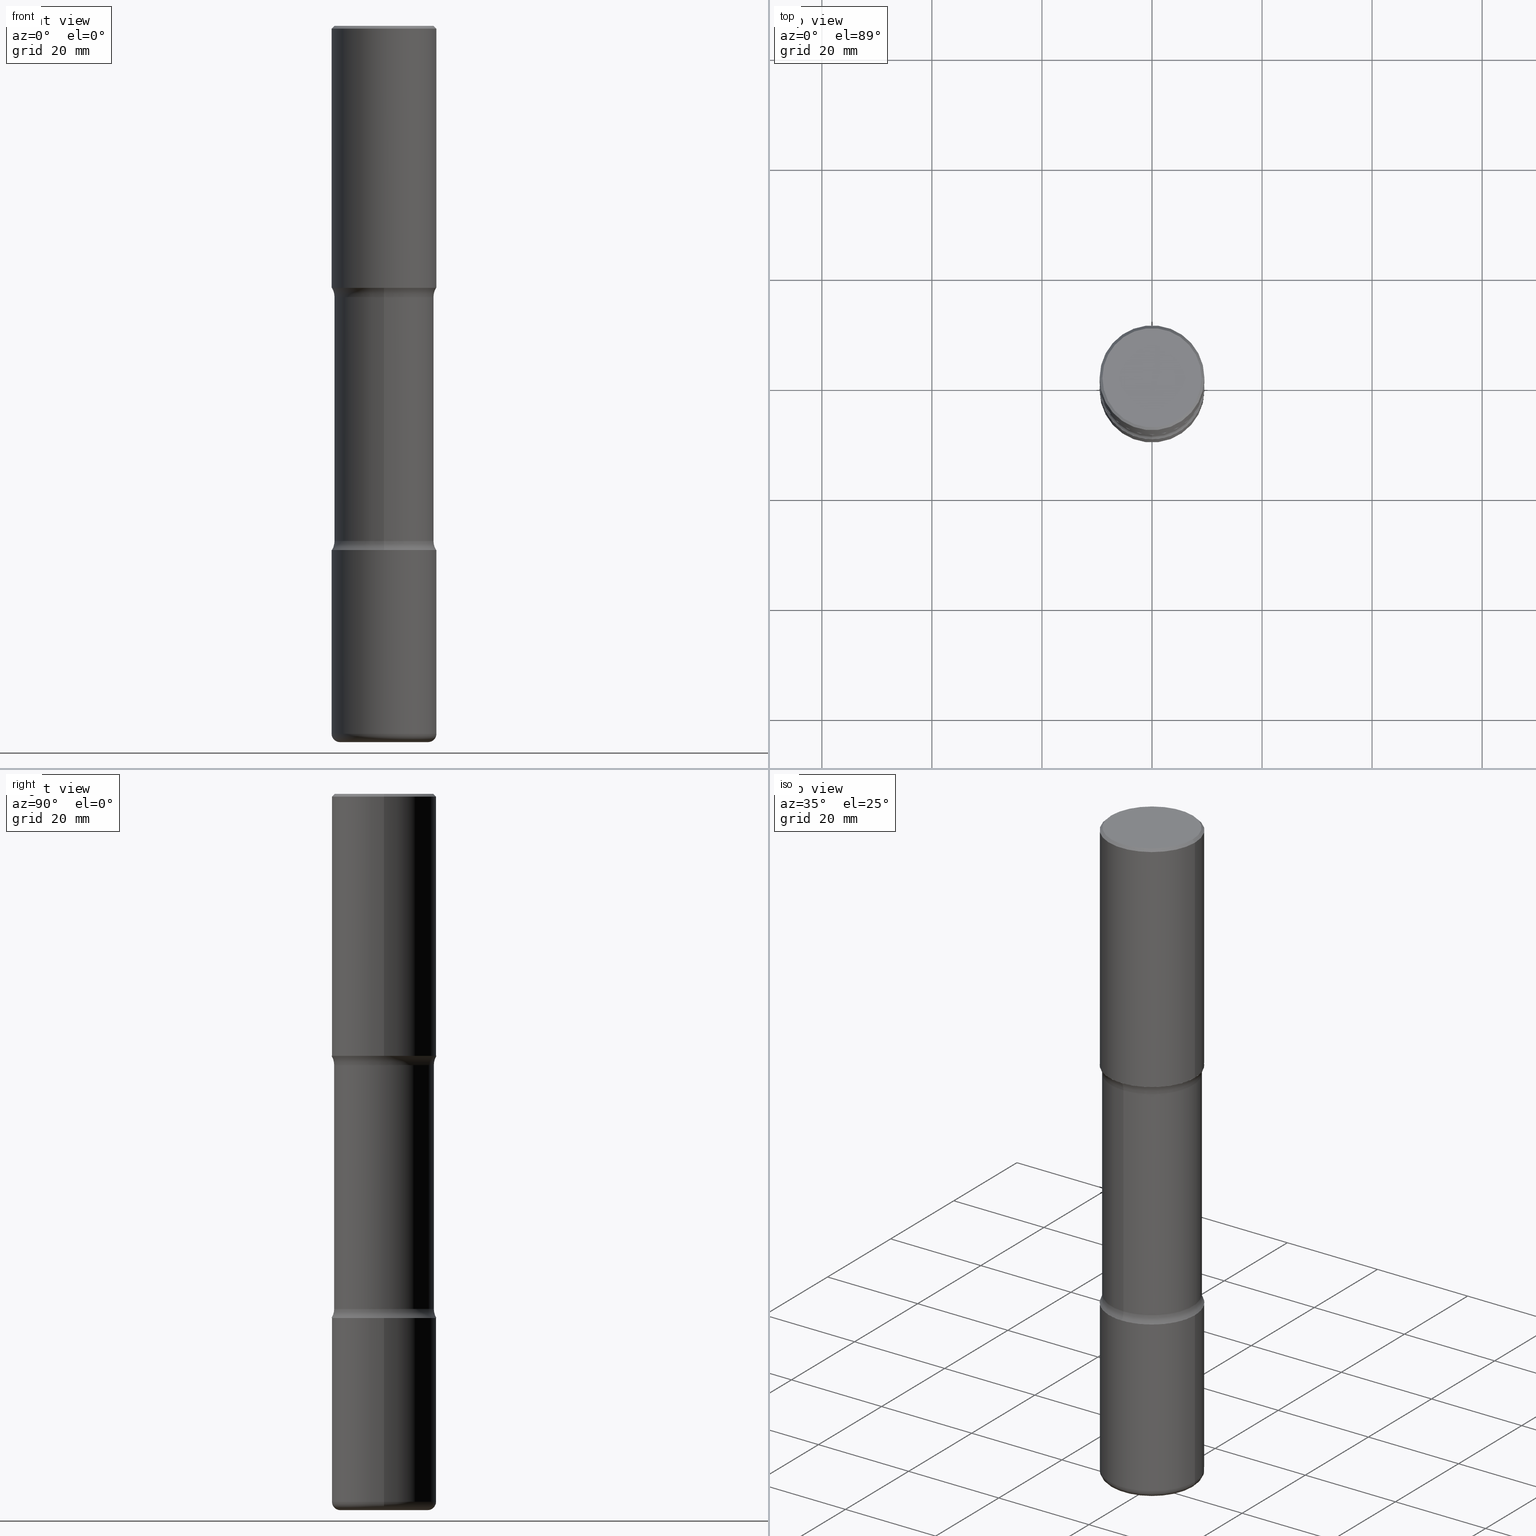
[diagram: canonical four-view strip — front | top / right | iso, engineering-drawing reading convention]
A machine part, canonical four-view strip (front | top / right | iso — engineering-drawing reading convention). The complete STEP part file that produces these views, byte-faithful:
ISO-10303-21;
HEADER;
FILE_DESCRIPTION (( 'STEP AP203' ),
    '1' );
FILE_NAME ('34121.STEP',
    '2024-03-01T23:07:41',
    ( '' ),
    ( '' ),
    'SwSTEP 2.0',
    'SolidWorks 2023',
    '' );
FILE_SCHEMA (( 'CONFIG_CONTROL_DESIGN' ));
ENDSEC;

DATA;
#1 = CARTESIAN_POINT ( 'NONE',  ( 1.253302763169882057E-28, -1.789384186157111367E-14, -5.124999999999998224 ) ) ;
#2 = MANIFOLD_SOLID_BREP ( 'Body-Move/Copy2[1]', #170 ) ;
#3 = CONICAL_SURFACE ( 'NONE', #541, 0.3750000000000002220, 0.7853981633974463916 ) ;
#4 = DIRECTION ( 'NONE',  ( 6.982962677686265922E-15, 1.000000000000000000, -3.065187089665373633E-15 ) ) ;
#5 = AXIS2_PLACEMENT_3D ( 'NONE', #74, #14, #82 ) ;
#6 = ORIENTED_EDGE ( 'NONE', *, *, #471, .T. ) ;
#7 = CARTESIAN_POINT ( 'NONE',  ( 9.170508023194262238E-29, -1.309305502066179741E-14, -3.750000000000000000 ) ) ;
#8 = EDGE_LOOP ( 'NONE', ( #289, #327 ) ) ;
#9 = DIRECTION ( 'NONE',  ( -1.000000000000000000, 6.982962677686265922E-15, -4.876176775795935793E-29 ) ) ;
#10 = ORIENTED_EDGE ( 'NONE', *, *, #22, .F. ) ;
#11 = DIRECTION ( 'NONE',  ( 1.000000000000000000, -6.982962677686265133E-15, 0.000000000000000000 ) ) ;
#12 = CIRCLE ( 'NONE', #339, 0.3150000000000004463 ) ;
#13 = TOROIDAL_SURFACE ( 'NONE', #340, 0.4814999999999999281, 0.1250000000000000000 ) ;
#14 = DIRECTION ( 'NONE',  ( -2.445468806185136597E-29, 3.491481338843145583E-15, 1.000000000000000000 ) ) ;
#15 = EDGE_CURVE ( 'NONE', #462, #111, #440, .T. ) ;
#16 = APPROVAL_DATE_TIME ( #421, #338 ) ;
#17 = ORIENTED_EDGE ( 'NONE', *, *, #266, .T. ) ;
#18 = ORIENTED_EDGE ( 'NONE', *, *, #423, .T. ) ;
#19 = DIRECTION ( 'NONE',  ( 1.000000000000000000, -6.982962677686265922E-15, 4.883557194083112901E-29 ) ) ;
#20 = ORIENTED_EDGE ( 'NONE', *, *, #30, .T. ) ;
#21 = CARTESIAN_POINT ( 'NONE',  ( 1.238629950332771579E-28, -1.768435298124053008E-14, -5.064999999999999503 ) ) ;
#22 = EDGE_CURVE ( 'NONE', #153, #185, #162, .T. ) ;
#23 = EDGE_LOOP ( 'NONE', ( #412, #537, #458, #197 ) ) ;
#24 = AXIS2_PLACEMENT_3D ( 'NONE', #121, #249, #509 ) ;
#25 = CARTESIAN_POINT ( 'NONE',  ( 9.170508023194262238E-29, -1.309305502066179741E-14, -3.750000000000000000 ) ) ;
#26 = AXIS2_PLACEMENT_3D ( 'NONE', #373, #193, #328 ) ;
#27 = CARTESIAN_POINT ( 'NONE',  ( 0.000000000000000000, 0.000000000000000000, 0.000000000000000000 ) ) ;
#28 = AXIS2_PLACEMENT_3D ( 'NONE', #390, #553, #127 ) ;
#29 = AXIS2_PLACEMENT_3D ( 'NONE', #310, #410, #57 ) ;
#30 = EDGE_CURVE ( 'NONE', #224, #230, #38, .T. ) ;
#31 = AXIS2_PLACEMENT_3D ( 'NONE', #260, #264, #302 ) ;
#32 = DIRECTION ( 'NONE',  ( -1.000000000000000000, 7.105427357601001859E-15, 0.000000000000000000 ) ) ;
#33 = CC_DESIGN_PERSON_AND_ORGANIZATION_ASSIGNMENT ( #457, #72, ( #66 ) ) ;
#34 = DIRECTION ( 'NONE',  ( 6.982962677686265922E-15, 1.000000000000000000, -3.065187089665373239E-15 ) ) ;
#35 = CARTESIAN_POINT ( 'NONE',  ( 4.487704276808594217E-29, -6.686224282734187191E-15, -1.875000000000000666 ) ) ;
#36 = DIRECTION ( 'NONE',  ( 6.982962677686265922E-15, 1.000000000000000000, -3.065187089665371661E-15 ) ) ;
#37 = LENGTH_MEASURE_WITH_UNIT ( LENGTH_MEASURE( 0.02539999999999999897 ), #469 );
#38 = LINE ( 'NONE', #214, #80 ) ;
#39 = AXIS2_PLACEMENT_3D ( 'NONE', #61, #413, #218 ) ;
#40 = AXIS2_PLACEMENT_3D ( 'NONE', #459, #71, #198 ) ;
#41 = CARTESIAN_POINT ( 'NONE',  ( 4.697601167951830213E-29, -6.843315756459355709E-15, -1.940442723048480866 ) ) ;
#42 = EDGE_CURVE ( 'NONE', #366, #398, #209, .T. ) ;
#43 = EDGE_CURVE ( 'NONE', #117, #286, #283, .T. ) ;
#44 = DIRECTION ( 'NONE',  ( -2.445468806185136597E-29, 3.491481338843145583E-15, 1.000000000000000000 ) ) ;
#45 = ORIENTED_EDGE ( 'NONE', *, *, #259, .F. ) ;
#46 = DIRECTION ( 'NONE',  ( -2.497495331405689947E-29, 3.416976393561393039E-15, 1.000000000000000000 ) ) ;
#47 = FACE_OUTER_BOUND ( 'NONE', #268, .T. ) ;
#48 = ORIENTED_EDGE ( 'NONE', *, *, #232, .T. ) ;
#49 = CYLINDRICAL_SURFACE ( 'NONE', #294, 0.3750000000000002220 ) ;
#50 = ORIENTED_EDGE ( 'NONE', *, *, #156, .F. ) ;
#51 = ADVANCED_FACE ( 'NONE', ( #449 ), #175, .F. ) ;
#52 = AXIS2_PLACEMENT_3D ( 'NONE', #208, #388, #79 ) ;
#53 = FACE_OUTER_BOUND ( 'NONE', #497, .T. ) ;
#54 = PERSON_AND_ORGANIZATION ( #394, #183 ) ;
#55 = VERTEX_POINT ( 'NONE', #91 ) ;
#56 = ADVANCED_BREP_SHAPE_REPRESENTATION ( '34121', ( #2, #200, #187, #28 ), #333 ) ;
#57 = DIRECTION ( 'NONE',  ( 1.000000000000000000, -6.982962677686265922E-15, 4.876176775795935793E-29 ) ) ;
#58 = APPLICATION_PROTOCOL_DEFINITION ( 'international standard', 'config_control_design', 1994, #496 ) ;
#59 = EDGE_LOOP ( 'NONE', ( #17, #329 ) ) ;
#60 = EDGE_CURVE ( 'NONE', #248, #444, #139, .T. ) ;
#61 = CARTESIAN_POINT ( 'NONE',  ( 4.487704276808594217E-29, -6.686224282734187191E-15, -1.875000000000000666 ) ) ;
#62 = PERSON_AND_ORGANIZATION ( #394, #183 ) ;
#63 = LOCAL_TIME ( 18, 7, 41.00000000000000000, #190 ) ;
#64 = ORIENTED_EDGE ( 'NONE', *, *, #156, .T. ) ;
#65 = CIRCLE ( 'NONE', #75, 0.3565000000000000946 ) ;
#66 = PRODUCT_DEFINITION_FORMATION_WITH_SPECIFIED_SOURCE ( 'ANY', '', #484, .NOT_KNOWN. ) ;
#67 = DIRECTION ( 'NONE',  ( 6.982962677686265922E-15, 1.000000000000000000, -2.913971193241879977E-15 ) ) ;
#68 = ADVANCED_FACE ( 'NONE', ( #53 ), #143, .T. ) ;
#69 = EDGE_LOOP ( 'NONE', ( #18, #93, #445, #271 ) ) ;
#70 = DIRECTION ( 'NONE',  ( 1.000000000000000000, -6.982962677686265922E-15, 4.876176775795935793E-29 ) ) ;
#71 = DIRECTION ( 'NONE',  ( -2.445468806185136597E-29, 3.491481338843145583E-15, 1.000000000000000000 ) ) ;
#72 = PERSON_AND_ORGANIZATION_ROLE ( 'creator' ) ;
#73 = ORIENTED_EDGE ( 'NONE', *, *, #307, .T. ) ;
#74 = CARTESIAN_POINT ( 'NONE',  ( 1.253302763169882057E-28, -1.789384186157111367E-14, -5.124999999999998224 ) ) ;
#75 = AXIS2_PLACEMENT_3D ( 'NONE', #397, #526, #36 ) ;
#76 = LINE ( 'NONE', #381, #226 ) ;
#77 = EDGE_CURVE ( 'NONE', #185, #153, #293, .T. ) ;
#78 = EDGE_CURVE ( 'NONE', #107, #372, #12, .T. ) ;
#79 = DIRECTION ( 'NONE',  ( 1.000000000000000000, -6.982962677686265922E-15, 0.000000000000000000 ) ) ;
#80 = VECTOR ( 'NONE', #346, 39.37007874015748143 ) ;
#81 = CIRCLE ( 'NONE', #348, 0.05999999999999935940 ) ;
#82 = DIRECTION ( 'NONE',  ( 1.000000000000000000, -6.982962677686265133E-15, 0.000000000000000000 ) ) ;
#83 = DIRECTION ( 'NONE',  ( 1.000000000000000000, -6.982962677686266711E-15, 4.876231632511985941E-29 ) ) ;
#84 = CC_DESIGN_PERSON_AND_ORGANIZATION_ASSIGNMENT ( #425, #155, ( #436 ) ) ;
#85 = DIMENSIONAL_EXPONENTS ( 1.000000000000000000, 0.000000000000000000, 0.000000000000000000, 0.000000000000000000, 0.000000000000000000, 0.000000000000000000, 0.000000000000000000 ) ;
#86 = CIRCLE ( 'NONE', #308, 0.3750000000000004441 ) ;
#87 = CIRCLE ( 'NONE', #112, 0.3750000000000002220 ) ;
#88 = CIRCLE ( 'NONE', #418, 0.3750000000000004441 ) ;
#89 = DIRECTION ( 'NONE',  ( 2.497495331405690228E-29, -3.416976393561393039E-15, -1.000000000000000000 ) ) ;
#90 = ORIENTED_EDGE ( 'NONE', *, *, #400, .T. ) ;
#91 = CARTESIAN_POINT ( 'NONE',  ( 0.3750000000000001110, -2.030296398537288325E-14, -5.064999999999999503 ) ) ;
#92 = EDGE_LOOP ( 'NONE', ( #48, #545, #317, #358 ) ) ;
#93 = ORIENTED_EDGE ( 'NONE', *, *, #382, .T. ) ;
#94 = EDGE_CURVE ( 'NONE', #230, #111, #87, .T. ) ;
#95 = DIRECTION ( 'NONE',  ( -6.982962677686266711E-15, -1.000000000000000000, 3.491481338843145583E-15 ) ) ;
#96 = ORIENTED_EDGE ( 'NONE', *, *, #97, .T. ) ;
#97 = EDGE_CURVE ( 'NONE', #372, #55, #403, .T. ) ;
#98 = CARTESIAN_POINT ( 'NONE',  ( 0.000000000000000000, 0.000000000000000000, 0.000000000000000000 ) ) ;
#99 = ORIENTED_EDGE ( 'NONE', *, *, #263, .F. ) ;
#100 = DIRECTION ( 'NONE',  ( -1.000000000000000000, 6.982962677686266711E-15, 0.000000000000000000 ) ) ;
#101 = VECTOR ( 'NONE', #160, 39.37007874015748143 ) ;
#102 = VERTEX_POINT ( 'NONE', #359 ) ;
#103 = CARTESIAN_POINT ( 'NONE',  ( 0.000000000000000000, 0.000000000000000000, 0.000000000000000000 ) ) ;
#104 = CARTESIAN_POINT ( 'NONE',  ( 9.170508023194262238E-29, -1.309305502066179741E-14, -3.750000000000000000 ) ) ;
#105 = CALENDAR_DATE ( 2024, 1, 3 ) ;
#106 = EDGE_CURVE ( 'NONE', #462, #224, #86, .T. ) ;
#107 = VERTEX_POINT ( 'NONE', #270 ) ;
#108 = ADVANCED_FACE ( 'NONE', ( #189 ), #456, .F. ) ;
#109 = PLANE ( 'NONE',  #274 ) ;
#110 = APPROVAL_DATE_TIME ( #539, #301 ) ;
#111 = VERTEX_POINT ( 'NONE', #313 ) ;
#112 = AXIS2_PLACEMENT_3D ( 'NONE', #325, #273, #495 ) ;
#113 = AXIS2_PLACEMENT_3D ( 'NONE', #27, #341, #70 ) ;
#114 = FACE_OUTER_BOUND ( 'NONE', #8, .T. ) ;
#115 = APPROVAL_STATUS ( 'not_yet_approved' ) ;
#116 = ADVANCED_FACE ( 'NONE', ( #365 ), #3, .T. ) ;
#117 = VERTEX_POINT ( 'NONE', #188 ) ;
#118 = CARTESIAN_POINT ( 'NONE',  ( 1.238629950332771579E-28, -1.768435298124053008E-14, -5.064999999999999503 ) ) ;
#119 = DIRECTION ( 'NONE',  ( 1.000000000000000000, -6.982962677686266711E-15, 4.876176775795935793E-29 ) ) ;
#120 = PERSON_AND_ORGANIZATION ( #394, #183 ) ;
#121 = CARTESIAN_POINT ( 'NONE',  ( 1.260456410387708500E-28, -1.779139756180870974E-14, -5.125000000000000000 ) ) ;
#122 = CIRCLE ( 'NONE', #31, 0.3750000000000001110 ) ;
#123 = EDGE_CURVE ( 'NONE', #444, #178, #180, .T. ) ;
#124 = LINE ( 'NONE', #557, #384 ) ;
#125 = EDGE_CURVE ( 'NONE', #265, #286, #378, .T. ) ;
#126 = AXIS2_PLACEMENT_3D ( 'NONE', #237, #415, #9 ) ;
#127 = DIRECTION ( 'NONE',  ( 1.000000000000000000, 0.000000000000000000, 0.000000000000000000 ) ) ;
#128 = FACE_OUTER_BOUND ( 'NONE', #505, .T. ) ;
#129 = DIRECTION ( 'NONE',  ( -2.445468806185136597E-29, 3.491481338843145583E-15, 1.000000000000000000 ) ) ;
#130 =( NAMED_UNIT ( * ) PLANE_ANGLE_UNIT ( ) SI_UNIT ( $, .RADIAN. ) );
#131 = PERSON_AND_ORGANIZATION_ROLE ( 'design_owner' ) ;
#132 = CARTESIAN_POINT ( 'NONE',  ( 9.010469885387392836E-29, -1.286456297437495039E-14, -3.684557276951520688 ) ) ;
#133 = CARTESIAN_POINT ( 'NONE',  ( 4.890937612370306439E-31, -6.982962677686338448E-17, -0.02000000000000013572 ) ) ;
#134 = APPLICATION_PROTOCOL_DEFINITION ( 'international standard', 'config_control_design', 1994, #235 ) ;
#135 = CARTESIAN_POINT ( 'NONE',  ( 4.585254011597132801E-29, -6.546527510330900285E-15, -1.875000000000000666 ) ) ;
#136 = AXIS2_PLACEMENT_3D ( 'NONE', #35, #256, #552 ) ;
#137 = CIRCLE ( 'NONE', #395, 0.1249999999999999584 ) ;
#138 = CC_DESIGN_APPROVAL ( #485, ( #436 ) ) ;
#139 = LINE ( 'NONE', #148, #202 ) ;
#140 = DIRECTION ( 'NONE',  ( -1.000000000000000000, 6.982962677686265922E-15, -4.883557194083112340E-29 ) ) ;
#141 = DIRECTION ( 'NONE',  ( -2.445468806185136597E-29, 3.491481338843145583E-15, 1.000000000000000000 ) ) ;
#142 = EDGE_LOOP ( 'NONE', ( #374, #427, #150, #446 ) ) ;
#143 = CYLINDRICAL_SURFACE ( 'NONE', #29, 0.3750000000000003886 ) ;
#144 = PERSON_AND_ORGANIZATION ( #394, #183 ) ;
#145 = VECTOR ( 'NONE', #389, 39.37007874015748143 ) ;
#146 = AXIS2_PLACEMENT_3D ( 'NONE', #303, #269, #213 ) ;
#147 = ORIENTED_EDGE ( 'NONE', *, *, #307, .F. ) ;
#148 = CARTESIAN_POINT ( 'NONE',  ( -0.3750000000000002220, 2.664535259100377275E-15, -1.844600658845590719E-29 ) ) ;
#149 = COORDINATED_UNIVERSAL_TIME_OFFSET ( 5, 0, .BEHIND. ) ;
#150 = ORIENTED_EDGE ( 'NONE', *, *, #550, .T. ) ;
#151 = DIRECTION ( 'NONE',  ( -2.445468806185136597E-29, 3.491481338843145583E-15, 1.000000000000000000 ) ) ;
#152 = CALENDAR_DATE ( 2024, 1, 3 ) ;
#153 = VERTEX_POINT ( 'NONE', #351 ) ;
#154 = DIRECTION ( 'NONE',  ( 1.000000000000000000, -6.860497997771530774E-15, 4.841711302051742582E-29 ) ) ;
#155 = PERSON_AND_ORGANIZATION_ROLE ( 'classification_officer' ) ;
#156 = EDGE_CURVE ( 'NONE', #224, #462, #210, .T. ) ;
#157 = DIRECTION ( 'NONE',  ( 2.497495331405690228E-29, -3.416976393561393039E-15, -1.000000000000000000 ) ) ;
#158 = ORIENTED_EDGE ( 'NONE', *, *, #263, .T. ) ;
#159 = AXIS2_PLACEMENT_3D ( 'NONE', #21, #151, #281 ) ;
#160 = DIRECTION ( 'NONE',  ( -0.7071067811865461294, 2.468850131082242072E-15, -0.7071067811865489050 ) ) ;
#161 = ADVANCED_FACE ( 'NONE', ( #529 ), #481, .F. ) ;
#162 = CIRCLE ( 'NONE', #136, 0.3750000000000004996 ) ;
#163 = FACE_OUTER_BOUND ( 'NONE', #500, .T. ) ;
#164 = AXIS2_PLACEMENT_3D ( 'NONE', #133, #220, #312 ) ;
#165 = AXIS2_PLACEMENT_3D ( 'NONE', #132, #157, #280 ) ;
#166 = CARTESIAN_POINT ( 'NONE',  ( -2.445767536205424380E-15, -0.3565000000000177471, -5.124999999999998224 ) ) ;
#167 = DIRECTION ( 'NONE',  ( -2.445468806185136597E-29, 3.491481338843145583E-15, 1.000000000000000000 ) ) ;
#168 = CARTESIAN_POINT ( 'NONE',  ( -2.572686749164282132E-15, -0.3750000000000070499, -1.874999999999999334 ) ) ;
#169 = CC_DESIGN_SECURITY_CLASSIFICATION ( #436, ( #66 ) ) ;
#170 = CLOSED_SHELL ( 'NONE', ( #176, #536, #479, #199, #453, #326 ) ) ;
#171 = CC_DESIGN_PERSON_AND_ORGANIZATION_ASSIGNMENT ( #370, #452, ( #207 ) ) ;
#172 = CIRCLE ( 'NONE', #159, 0.3750000000000004441 ) ;
#173 = CARTESIAN_POINT ( 'NONE',  ( 2.489426194595200956E-15, 0.3564999999999931557, -1.940442723048481977 ) ) ;
#174 = PLANE ( 'NONE',  #146 ) ;
#175 = PLANE ( 'NONE',  #555 ) ;
#176 = ADVANCED_FACE ( 'NONE', ( #451 ), #49, .T. ) ;
#177 = DIRECTION ( 'NONE',  ( -2.445468806185136597E-29, 3.491481338843145583E-15, 1.000000000000000000 ) ) ;
#178 = VERTEX_POINT ( 'NONE', #195 ) ;
#179 = DIRECTION ( 'NONE',  ( -2.445468806185136597E-29, 3.491481338843145583E-15, 1.000000000000000000 ) ) ;
#180 = CIRCLE ( 'NONE', #299, 0.3750000000000001110 ) ;
#181 = EDGE_LOOP ( 'NONE', ( #73, #364 ) ) ;
#182 = VECTOR ( 'NONE', #538, 39.37007874015748143 ) ;
#183 = ORGANIZATION ( 'UNSPECIFIED', 'UNSPECIFIED', '' ) ;
#184 = DIRECTION ( 'NONE',  ( -6.982962677686265133E-15, -1.000000000000000000, 0.000000000000000000 ) ) ;
#185 = VERTEX_POINT ( 'NONE', #168 ) ;
#186 = DIRECTION ( 'NONE',  ( -2.445468806185136597E-29, 3.491481338843145583E-15, 1.000000000000000000 ) ) ;
#187 = MANIFOLD_SOLID_BREP ( 'Body-Move/Copy2[4]', #223 ) ;
#188 = CARTESIAN_POINT ( 'NONE',  ( 2.489426194595243160E-15, 0.3564999999999870495, -3.684557276951521576 ) ) ;
#189 = FACE_OUTER_BOUND ( 'NONE', #59, .T. ) ;
#190 = COORDINATED_UNIVERSAL_TIME_OFFSET ( 5, 0, .BEHIND. ) ;
#191 = CC_DESIGN_DATE_AND_TIME_ASSIGNMENT ( #331, #503, ( #436 ) ) ;
#192 = AXIS2_PLACEMENT_3D ( 'NONE', #441, #44, #437 ) ;
#193 = DIRECTION ( 'NONE',  ( -2.438088387897960049E-29, 3.491481338843145188E-15, 1.000000000000000000 ) ) ;
#194 = ORIENTED_EDGE ( 'NONE', *, *, #78, .T. ) ;
#195 = CARTESIAN_POINT ( 'NONE',  ( 0.3750000000000001110, -1.571166602479414743E-14, -3.750000000000000000 ) ) ;
#196 = COORDINATED_UNIVERSAL_TIME_OFFSET ( 5, 0, .BEHIND. ) ;
#197 = ORIENTED_EDGE ( 'NONE', *, *, #454, .F. ) ;
#198 = DIRECTION ( 'NONE',  ( 1.000000000000000000, -6.982962677686266711E-15, 4.876231632511985941E-29 ) ) ;
#199 = ADVANCED_FACE ( 'NONE', ( #429 ), #254, .T. ) ;
#200 = MANIFOLD_SOLID_BREP ( 'Body-Move/Copy2[2]', #513 ) ;
#201 = ORIENTED_EDGE ( 'NONE', *, *, #404, .F. ) ;
#202 = VECTOR ( 'NONE', #222, 39.37007874015748143 ) ;
#203 = CONICAL_SURFACE ( 'NONE', #164, 0.3750000000000002220, 0.7853981633974463916 ) ;
#204 = DIRECTION ( 'NONE',  ( 1.000000000000000000, -6.982962677686265922E-15, 4.883557194083112901E-29 ) ) ;
#205 = APPROVAL_DATE_TIME ( #468, #485 ) ;
#206 = DIRECTION ( 'NONE',  ( 1.000000000000000000, -6.982962677686265133E-15, 0.000000000000000000 ) ) ;
#207 = PRODUCT_DEFINITION ( 'UNKNOWN', '', #66, #433 ) ;
#208 = CARTESIAN_POINT ( 'NONE',  ( 9.170508023194262238E-29, -1.309305502066179741E-14, -3.750000000000000000 ) ) ;
#209 = CIRCLE ( 'NONE', #521, 0.3565000000000000946 ) ;
#210 = CIRCLE ( 'NONE', #332, 0.3750000000000004441 ) ;
#211 = PLANE ( 'NONE',  #26 ) ;
#212 = ADVANCED_FACE ( 'NONE', ( #290 ), #109, .F. ) ;
#213 = DIRECTION ( 'NONE',  ( -1.000000000000000000, 6.982962677686265922E-15, -4.876176775795935793E-29 ) ) ;
#214 = CARTESIAN_POINT ( 'NONE',  ( -0.3750000000000003886, 2.664535259100378458E-15, -1.844600658845591560E-29 ) ) ;
#215 = TOROIDAL_SURFACE ( 'NONE', #165, 0.4814999999999999281, 0.1250000000000000000 ) ;
#216 = CARTESIAN_POINT ( 'NONE',  ( 0.3750000000000004441, -9.165138514463253457E-15, -1.875000000000000666 ) ) ;
#217 = CARTESIAN_POINT ( 'NONE',  ( -0.3750000000000001110, -1.272416874185078647E-14, -3.750000000000000000 ) ) ;
#218 = DIRECTION ( 'NONE',  ( 6.982962677686266711E-15, 1.000000000000000000, -3.642463991552346225E-15 ) ) ;
#219 = ORIENTED_EDGE ( 'NONE', *, *, #471, .F. ) ;
#220 = DIRECTION ( 'NONE',  ( 2.445468806185136597E-29, -3.491481338843145583E-15, -1.000000000000000000 ) ) ;
#221 = ORIENTED_EDGE ( 'NONE', *, *, #423, .F. ) ;
#222 = DIRECTION ( 'NONE',  ( -2.445468806185136877E-29, 3.491481338843145188E-15, 1.000000000000000000 ) ) ;
#223 = CLOSED_SHELL ( 'NONE', ( #520, #501, #161, #426, #212, #51, #504, #493 ) ) ;
#224 = VERTEX_POINT ( 'NONE', #463 ) ;
#225 = AXIS2_PLACEMENT_3D ( 'NONE', #510, #154, #288 ) ;
#226 = VECTOR ( 'NONE', #546, 39.37007874015748143 ) ;
#227 = ORIENTED_EDGE ( 'NONE', *, *, #94, .F. ) ;
#228 = DIRECTION ( 'NONE',  ( -6.982962677686265922E-15, -1.000000000000000000, 3.416976393561393039E-15 ) ) ;
#229 = APPROVAL_ROLE ( '' ) ;
#230 = VERTEX_POINT ( 'NONE', #252 ) ;
#231 = ORIENTED_EDGE ( 'NONE', *, *, #507, .T. ) ;
#232 = EDGE_CURVE ( 'NONE', #372, #107, #523, .T. ) ;
#233 = CARTESIAN_POINT ( 'NONE',  ( 9.007065127906209971E-29, -1.286943878087476446E-14, -3.684557276951520688 ) ) ;
#234 = ORIENTED_EDGE ( 'NONE', *, *, #43, .T. ) ;
#235 = APPLICATION_CONTEXT ( 'configuration controlled 3d designs of mechanical parts and assemblies' ) ;
#236 = ORIENTED_EDGE ( 'NONE', *, *, #15, .F. ) ;
#237 = CARTESIAN_POINT ( 'NONE',  ( 2.478951750578625787E-15, 0.3550000000000001488, -1.237341619044267019E-15 ) ) ;
#238 = AXIS2_PLACEMENT_3D ( 'NONE', #319, #95, #406 ) ;
#239 = AXIS2_PLACEMENT_3D ( 'NONE', #475, #376, #19 ) ;
#240 = EDGE_LOOP ( 'NONE', ( #447, #368, #560, #219 ) ) ;
#241 = PLANE ( 'NONE',  #543 ) ;
#242 = ADVANCED_FACE ( 'NONE', ( #257 ), #211, .F. ) ;
#243 = ORIENTED_EDGE ( 'NONE', *, *, #77, .F. ) ;
#244 = CYLINDRICAL_SURFACE ( 'NONE', #24, 0.3564999999999999281 ) ;
#245 = CARTESIAN_POINT ( 'NONE',  ( -0.3150000000000004463, -1.544614336359621172E-14, -5.064999999999999503 ) ) ;
#246 = PERSON_AND_ORGANIZATION_ROLE ( 'design_supplier' ) ;
#247 = CC_DESIGN_PERSON_AND_ORGANIZATION_ASSIGNMENT ( #62, #246, ( #66 ) ) ;
#248 = VERTEX_POINT ( 'NONE', #369 ) ;
#249 = DIRECTION ( 'NONE',  ( 2.497495331405690228E-29, -3.416976393561393039E-15, -1.000000000000000000 ) ) ;
#250 = DIRECTION ( 'NONE',  ( -1.000000000000000000, 6.982962677686265922E-15, -4.876176775795935793E-29 ) ) ;
#251 = AXIS2_PLACEMENT_3D ( 'NONE', #483, #396, #184 ) ;
#252 = CARTESIAN_POINT ( 'NONE',  ( -0.3750000000000002220, 2.548781377355488296E-15, -0.02000000000000013572 ) ) ;
#253 = AXIS2_PLACEMENT_3D ( 'NONE', #233, #399, #489 ) ;
#254 = TOROIDAL_SURFACE ( 'NONE', #239, 0.3150000000000004463, 0.05999999999999939410 ) ;
#255 = EDGE_CURVE ( 'NONE', #107, #248, #81, .T. ) ;
#256 = DIRECTION ( 'NONE',  ( 2.497495331405690228E-29, -3.416976393561393039E-15, -1.000000000000000000 ) ) ;
#257 = FACE_OUTER_BOUND ( 'NONE', #357, .T. ) ;
#258 = FACE_OUTER_BOUND ( 'NONE', #272, .T. ) ;
#259 = EDGE_CURVE ( 'NONE', #248, #55, #172, .T. ) ;
#260 = CARTESIAN_POINT ( 'NONE',  ( 9.170508023194262238E-29, -1.309305502066179741E-14, -3.750000000000000000 ) ) ;
#261 = DIRECTION ( 'NONE',  ( 6.982962677686265922E-15, 1.000000000000000000, -3.065187089665371661E-15 ) ) ;
#262 = AXIS2_PLACEMENT_3D ( 'NONE', #98, #177, #559 ) ;
#263 = EDGE_CURVE ( 'NONE', #276, #111, #498, .T. ) ;
#264 = DIRECTION ( 'NONE',  ( 2.497495331405690228E-29, -3.416976393561393039E-15, -1.000000000000000000 ) ) ;
#265 = VERTEX_POINT ( 'NONE', #467 ) ;
#266 = EDGE_CURVE ( 'NONE', #352, #276, #474, .T. ) ;
#267 = DIRECTION ( 'NONE',  ( 1.000000000000000000, -6.982962677686265922E-15, 0.000000000000000000 ) ) ;
#268 = EDGE_LOOP ( 'NONE', ( #488, #279, #494, #201 ) ) ;
#269 = DIRECTION ( 'NONE',  ( 2.438088387897960049E-29, -3.491481338843145188E-15, -1.000000000000000000 ) ) ;
#270 = CARTESIAN_POINT ( 'NONE',  ( -0.3150000000000004463, -1.533772498303347958E-14, -5.124999999999998224 ) ) ;
#271 = ORIENTED_EDGE ( 'NONE', *, *, #383, .F. ) ;
#272 = EDGE_LOOP ( 'NONE', ( #414, #221, #417, #402 ) ) ;
#273 = DIRECTION ( 'NONE',  ( -2.445468806185136597E-29, 3.491481338843145583E-15, 1.000000000000000000 ) ) ;
#274 = AXIS2_PLACEMENT_3D ( 'NONE', #511, #344, #298 ) ;
#275 = DIRECTION ( 'NONE',  ( 6.982962677686265922E-15, 1.000000000000000000, -3.416976393561393039E-15 ) ) ;
#276 = VERTEX_POINT ( 'NONE', #502 ) ;
#277 = CARTESIAN_POINT ( 'NONE',  ( 4.585254011597132801E-29, -6.546527510330900285E-15, -1.875000000000000666 ) ) ;
#278 = CALENDAR_DATE ( 2024, 1, 3 ) ;
#279 = ORIENTED_EDGE ( 'NONE', *, *, #42, .T. ) ;
#280 = DIRECTION ( 'NONE',  ( 6.982962677686265922E-15, 1.000000000000000000, -3.416976393561393039E-15 ) ) ;
#281 = DIRECTION ( 'NONE',  ( 1.000000000000000000, -6.982962677686265133E-15, 0.000000000000000000 ) ) ;
#282 = CC_DESIGN_APPROVAL ( #301, ( #66 ) ) ;
#283 = CIRCLE ( 'NONE', #253, 0.3564999999999998725 ) ;
#284 = EDGE_CURVE ( 'NONE', #366, #185, #367, .T. ) ;
#285 = CIRCLE ( 'NONE', #379, 0.3564999999999998725 ) ;
#286 = VERTEX_POINT ( 'NONE', #297 ) ;
#287 = FACE_OUTER_BOUND ( 'NONE', #69, .T. ) ;
#288 = DIRECTION ( 'NONE',  ( 6.860497997771532351E-15, 1.000000000000000000, 0.000000000000000000 ) ) ;
#289 = ORIENTED_EDGE ( 'NONE', *, *, #336, .T. ) ;
#290 = FACE_OUTER_BOUND ( 'NONE', #465, .T. ) ;
#291 = DATE_AND_TIME ( #105, #311 ) ;
#292 = FACE_OUTER_BOUND ( 'NONE', #92, .T. ) ;
#293 = CIRCLE ( 'NONE', #39, 0.3750000000000004996 ) ;
#294 = AXIS2_PLACEMENT_3D ( 'NONE', #103, #551, #119 ) ;
#295 = DIRECTION ( 'NONE',  ( 6.982962677686265922E-15, 1.000000000000000000, -3.416976393561393039E-15 ) ) ;
#296 = PRODUCT_DEFINITION_SHAPE ( 'NONE', 'NONE',  #207 ) ;
#297 = CARTESIAN_POINT ( 'NONE',  ( -2.509227142684845959E-15, -0.3565000000000126956, -3.684557276951519356 ) ) ;
#298 = DIRECTION ( 'NONE',  ( 6.982962677686265922E-15, 1.000000000000000000, -3.416976393561393039E-15 ) ) ;
#299 = AXIS2_PLACEMENT_3D ( 'NONE', #7, #141, #267 ) ;
#300 = CIRCLE ( 'NONE', #192, 0.3750000000000002220 ) ;
#301 = APPROVAL ( #499, 'UNSPECIFIED' ) ;
#302 = DIRECTION ( 'NONE',  ( 6.982962677686265922E-15, 1.000000000000000000, -2.913971193241879977E-15 ) ) ;
#303 = CARTESIAN_POINT ( 'NONE',  ( 2.494782280337588690E-28, -1.151485694703784788E-16, -5.125000000000000000 ) ) ;
#304 = ORIENTED_EDGE ( 'NONE', *, *, #255, .F. ) ;
#305 =( NAMED_UNIT ( * ) SI_UNIT ( $, .STERADIAN. ) SOLID_ANGLE_UNIT ( ) );
#306 = LOCAL_TIME ( 18, 7, 41.00000000000000000, #460 ) ;
#307 = EDGE_CURVE ( 'NONE', #102, #265, #556, .T. ) ;
#308 = AXIS2_PLACEMENT_3D ( 'NONE', #277, #354, #524 ) ;
#309 = CIRCLE ( 'NONE', #251, 0.1250000000000000278 ) ;
#310 = CARTESIAN_POINT ( 'NONE',  ( 0.000000000000000000, 0.000000000000000000, 0.000000000000000000 ) ) ;
#311 = LOCAL_TIME ( 18, 7, 41.00000000000000000, #196 ) ;
#312 = DIRECTION ( 'NONE',  ( -1.000000000000000000, 6.982962677686266711E-15, 0.000000000000000000 ) ) ;
#313 = CARTESIAN_POINT ( 'NONE',  ( 0.3750000000000002220, -2.642516375941189606E-15, -0.02000000000000013572 ) ) ;
#314 = ORIENTED_EDGE ( 'NONE', *, *, #106, .F. ) ;
#315 = CYLINDRICAL_SURFACE ( 'NONE', #531, 0.3564999999999999281 ) ;
#316 = CARTESIAN_POINT ( 'NONE',  ( 4.697601167951830213E-29, -6.843315756459355709E-15, -1.940442723048480866 ) ) ;
#317 = ORIENTED_EDGE ( 'NONE', *, *, #507, .F. ) ;
#318 = ORIENTED_EDGE ( 'NONE', *, *, #30, .F. ) ;
#319 = CARTESIAN_POINT ( 'NONE',  ( 0.3150000000000004463, -1.988398622471170662E-14, -5.064999999999999503 ) ) ;
#320 = EDGE_CURVE ( 'NONE', #352, #230, #330, .T. ) ;
#321 = APPROVAL_ROLE ( '' ) ;
#322 = ORIENTED_EDGE ( 'NONE', *, *, #60, .T. ) ;
#323 = AXIS2_PLACEMENT_3D ( 'NONE', #542, #548, #67 ) ;
#324 = ORIENTED_EDGE ( 'NONE', *, *, #266, .F. ) ;
#325 = CARTESIAN_POINT ( 'NONE',  ( 4.890937612370306439E-31, -6.982962677686338448E-17, -0.02000000000000013572 ) ) ;
#326 = ADVANCED_FACE ( 'NONE', ( #114 ), #241, .F. ) ;
#327 = ORIENTED_EDGE ( 'NONE', *, *, #123, .T. ) ;
#328 = DIRECTION ( 'NONE',  ( 1.000000000000000000, -6.982962677686265922E-15, 4.876176775795935793E-29 ) ) ;
#329 = ORIENTED_EDGE ( 'NONE', *, *, #470, .T. ) ;
#330 = LINE ( 'NONE', #435, #101 ) ;
#331 = DATE_AND_TIME ( #152, #63 ) ;
#332 = AXIS2_PLACEMENT_3D ( 'NONE', #135, #186, #482 ) ;
#333 =( GEOMETRIC_REPRESENTATION_CONTEXT ( 3 ) GLOBAL_UNCERTAINTY_ASSIGNED_CONTEXT ( ( #544 ) ) GLOBAL_UNIT_ASSIGNED_CONTEXT ( ( #438, #130, #305 ) ) REPRESENTATION_CONTEXT ( 'NONE', 'WORKASPACE' ) );
#334 = ORIENTED_EDGE ( 'NONE', *, *, #400, .F. ) ;
#335 = CARTESIAN_POINT ( 'NONE',  ( 9.010469885387392836E-29, -1.286456297437495039E-14, -3.684557276951520688 ) ) ;
#336 = EDGE_CURVE ( 'NONE', #178, #444, #508, .T. ) ;
#337 = DIRECTION ( 'NONE',  ( 2.438088387897960049E-29, -3.491481338843145188E-15, -1.000000000000000000 ) ) ;
#338 = APPROVAL ( #377, 'UNSPECIFIED' ) ;
#339 = AXIS2_PLACEMENT_3D ( 'NONE', #1, #179, #11 ) ;
#340 = AXIS2_PLACEMENT_3D ( 'NONE', #335, #549, #295 ) ;
#341 = DIRECTION ( 'NONE',  ( -2.445468806185136597E-29, 3.491481338843145583E-15, 1.000000000000000000 ) ) ;
#342 = DIRECTION ( 'NONE',  ( 2.497495331405690228E-29, -3.416976393561393039E-15, -1.000000000000000000 ) ) ;
#343 = CARTESIAN_POINT ( 'NONE',  ( 0.3750000000000003886, -2.618611004132352383E-15, 1.828566290923477884E-29 ) ) ;
#344 = DIRECTION ( 'NONE',  ( 2.497495331405689947E-29, -3.416976393561393039E-15, -1.000000000000000000 ) ) ;
#345 = SHAPE_DEFINITION_REPRESENTATION ( #296, #56 ) ;
#346 = DIRECTION ( 'NONE',  ( -2.445468806185136877E-29, 3.491481338843145188E-15, 1.000000000000000000 ) ) ;
#347 = APPROVAL_PERSON_ORGANIZATION ( #144, #301, #321 ) ;
#348 = AXIS2_PLACEMENT_3D ( 'NONE', #245, #534, #32 ) ;
#349 = DIRECTION ( 'NONE',  ( -6.982962677686269077E-15, -1.000000000000000000, 0.000000000000000000 ) ) ;
#350 = CYLINDRICAL_SURFACE ( 'NONE', #262, 0.3750000000000002220 ) ;
#351 = CARTESIAN_POINT ( 'NONE',  ( 2.618611004132398137E-15, 0.3749999999999938383, -1.875000000000001998 ) ) ;
#352 = VERTEX_POINT ( 'NONE', #420 ) ;
#353 = AXIS2_PLACEMENT_3D ( 'NONE', #41, #443, #478 ) ;
#354 = DIRECTION ( 'NONE',  ( -2.445468806185136597E-29, 3.491481338843145583E-15, 1.000000000000000000 ) ) ;
#355 = LOCAL_TIME ( 18, 7, 41.00000000000000000, #411 ) ;
#356 = PERSON_AND_ORGANIZATION ( #394, #183 ) ;
#357 = EDGE_LOOP ( 'NONE', ( #314, #50 ) ) ;
#358 = ORIENTED_EDGE ( 'NONE', *, *, #97, .F. ) ;
#359 = CARTESIAN_POINT ( 'NONE',  ( 2.618611004132441919E-15, 0.3749999999999870104, -3.750000000000001332 ) ) ;
#360 = EDGE_LOOP ( 'NONE', ( #99, #324, #533, #419 ) ) ;
#361 = ORIENTED_EDGE ( 'NONE', *, *, #78, .F. ) ;
#362 = CARTESIAN_POINT ( 'NONE',  ( -3.303329785926900930E-15, -0.4815000000000127511, -3.684557276951518912 ) ) ;
#363 = DATE_TIME_ROLE ( 'creation_date' ) ;
#364 = ORIENTED_EDGE ( 'NONE', *, *, #393, .T. ) ;
#365 = FACE_OUTER_BOUND ( 'NONE', #360, .T. ) ;
#366 = VERTEX_POINT ( 'NONE', #506 ) ;
#367 = CIRCLE ( 'NONE', #225, 0.1249999999999999584 ) ;
#368 = ORIENTED_EDGE ( 'NONE', *, *, #125, .T. ) ;
#369 = CARTESIAN_POINT ( 'NONE',  ( -0.3750000000000001110, -1.501981772214015439E-14, -5.064999999999999503 ) ) ;
#370 = PERSON_AND_ORGANIZATION ( #394, #183 ) ;
#371 = PRODUCT_RELATED_PRODUCT_CATEGORY ( 'detail', '', ( #484 ) ) ;
#372 = VERTEX_POINT ( 'NONE', #385 ) ;
#373 = CARTESIAN_POINT ( 'NONE',  ( 4.585254011597132801E-29, -6.546527510330900285E-15, -1.875000000000000666 ) ) ;
#374 = ORIENTED_EDGE ( 'NONE', *, *, #60, .F. ) ;
#375 = CARTESIAN_POINT ( 'NONE',  ( 1.238629950332771579E-28, -1.768435298124053008E-14, -5.064999999999999503 ) ) ;
#376 = DIRECTION ( 'NONE',  ( -2.445468806185136597E-29, 3.491481338843145583E-15, 1.000000000000000000 ) ) ;
#377 = APPROVAL_STATUS ( 'not_yet_approved' ) ;
#378 = CIRCLE ( 'NONE', #514, 0.1250000000000000278 ) ;
#379 = AXIS2_PLACEMENT_3D ( 'NONE', #401, #517, #4 ) ;
#380 = ORIENTED_EDGE ( 'NONE', *, *, #470, .F. ) ;
#381 = CARTESIAN_POINT ( 'NONE',  ( 0.3750000000000002220, -2.618611004132351594E-15, 1.828566290923477043E-29 ) ) ;
#382 = EDGE_CURVE ( 'NONE', #366, #286, #472, .T. ) ;
#383 = EDGE_CURVE ( 'NONE', #398, #117, #124, .T. ) ;
#384 = VECTOR ( 'NONE', #89, 39.37007874015748143 ) ;
#385 = CARTESIAN_POINT ( 'NONE',  ( 0.3150000000000004463, -2.009347510504229020E-14, -5.124999999999998224 ) ) ;
#386 = CALENDAR_DATE ( 2024, 1, 3 ) ;
#387 = CC_DESIGN_PERSON_AND_ORGANIZATION_ASSIGNMENT ( #356, #131, ( #484 ) ) ;
#388 = DIRECTION ( 'NONE',  ( -2.445468806185136597E-29, 3.491481338843145583E-15, 1.000000000000000000 ) ) ;
#389 = DIRECTION ( 'NONE',  ( -2.445468806185136877E-29, 3.491481338843145188E-15, 1.000000000000000000 ) ) ;
#390 = CARTESIAN_POINT ( 'NONE',  ( 0.000000000000000000, 0.000000000000000000, 0.000000000000000000 ) ) ;
#391 = DIRECTION ( 'NONE',  ( 2.497495331405690228E-29, -3.416976393561393039E-15, -1.000000000000000000 ) ) ;
#392 = CARTESIAN_POINT ( 'NONE',  ( 4.651147172096649847E-29, -6.909840522521219359E-15, -1.940442723048480866 ) ) ;
#393 = EDGE_CURVE ( 'NONE', #265, #102, #122, .T. ) ;
#394 = PERSON ( 'UNSPECIFIED', 'UNSPECIFIED', 'UNSPECIFIED', ('UNSPECIFIED'), ('UNSPECIFIED'), ('UNSPECIFIED') ) ;
#395 = AXIS2_PLACEMENT_3D ( 'NONE', #522, #140, #349 ) ;
#396 = DIRECTION ( 'NONE',  ( -1.000000000000000000, 6.982962677686265922E-15, -4.883557194083112340E-29 ) ) ;
#397 = CARTESIAN_POINT ( 'NONE',  ( 4.651147172096649847E-29, -6.909840522521219359E-15, -1.940442723048480866 ) ) ;
#398 = VERTEX_POINT ( 'NONE', #173 ) ;
#399 = DIRECTION ( 'NONE',  ( 2.497495331405690228E-29, -3.416976393561393039E-15, -1.000000000000000000 ) ) ;
#400 = EDGE_CURVE ( 'NONE', #111, #230, #300, .T. ) ;
#401 = CARTESIAN_POINT ( 'NONE',  ( 9.007065127906209971E-29, -1.286943878087476446E-14, -3.684557276951520688 ) ) ;
#402 = ORIENTED_EDGE ( 'NONE', *, *, #22, .T. ) ;
#403 = CIRCLE ( 'NONE', #238, 0.05999999999999935940 ) ;
#404 = EDGE_CURVE ( 'NONE', #286, #117, #285, .T. ) ;
#405 = AXIS2_PLACEMENT_3D ( 'NONE', #316, #492, #275 ) ;
#406 = DIRECTION ( 'NONE',  ( 1.000000000000000000, -6.982962677686277755E-15, 0.000000000000000000 ) ) ;
#407 = APPROVAL_PERSON_ORGANIZATION ( #54, #485, #229 ) ;
#408 = ORIENTED_EDGE ( 'NONE', *, *, #15, .T. ) ;
#409 = CC_DESIGN_DATE_AND_TIME_ASSIGNMENT ( #291, #363, ( #207 ) ) ;
#410 = DIRECTION ( 'NONE',  ( -2.445468806185136597E-29, 3.491481338843145583E-15, 1.000000000000000000 ) ) ;
#411 = COORDINATED_UNIVERSAL_TIME_OFFSET ( 5, 0, .BEHIND. ) ;
#412 = ORIENTED_EDGE ( 'NONE', *, *, #42, .F. ) ;
#413 = DIRECTION ( 'NONE',  ( 2.497495331405690228E-29, -3.416976393561393039E-15, -1.000000000000000000 ) ) ;
#414 = ORIENTED_EDGE ( 'NONE', *, *, #284, .F. ) ;
#415 = DIRECTION ( 'NONE',  ( 2.438088387897960049E-29, -3.491481338843145188E-15, -1.000000000000000000 ) ) ;
#416 = CALENDAR_DATE ( 2024, 1, 3 ) ;
#417 = ORIENTED_EDGE ( 'NONE', *, *, #454, .T. ) ;
#418 = AXIS2_PLACEMENT_3D ( 'NONE', #118, #167, #206 ) ;
#419 = ORIENTED_EDGE ( 'NONE', *, *, #94, .T. ) ;
#420 = CARTESIAN_POINT ( 'NONE',  ( -0.3550000000000001488, 2.513866563967057041E-15, 4.268512490082953109E-18 ) ) ;
#421 = DATE_AND_TIME ( #416, #306 ) ;
#422 = EDGE_LOOP ( 'NONE', ( #231, #322, #525, #480 ) ) ;
#423 = EDGE_CURVE ( 'NONE', #398, #366, #65, .T. ) ;
#424 = CARTESIAN_POINT ( 'NONE',  ( 0.3750000000000002220, -2.642516375941189606E-15, -0.02000000000000013572 ) ) ;
#425 = PERSON_AND_ORGANIZATION ( #394, #183 ) ;
#426 = ADVANCED_FACE ( 'NONE', ( #258 ), #442, .F. ) ;
#427 = ORIENTED_EDGE ( 'NONE', *, *, #259, .T. ) ;
#428 = DIRECTION ( 'NONE',  ( -2.445468806185136597E-29, 3.491481338843145583E-15, 1.000000000000000000 ) ) ;
#429 = FACE_OUTER_BOUND ( 'NONE', #448, .T. ) ;
#430 = LOCAL_TIME ( 18, 7, 41.00000000000000000, #149 ) ;
#431 = CIRCLE ( 'NONE', #491, 0.3550000000000001488 ) ;
#432 = ADVANCED_FACE ( 'NONE', ( #439 ), #203, .T. ) ;
#433 = DESIGN_CONTEXT ( 'detailed design', #496, 'design' ) ;
#434 = TOROIDAL_SURFACE ( 'NONE', #519, 0.3150000000000004463, 0.05999999999999939410 ) ;
#435 = CARTESIAN_POINT ( 'NONE',  ( -0.3750000000000002220, 2.548781377355488296E-15, -0.02000000000000013572 ) ) ;
#436 = SECURITY_CLASSIFICATION ( '', '', #535 ) ;
#437 = DIRECTION ( 'NONE',  ( 1.000000000000000000, -6.982962677686266711E-15, 0.000000000000000000 ) ) ;
#438 =( CONVERSION_BASED_UNIT ( 'INCH', #37 ) LENGTH_UNIT ( ) NAMED_UNIT ( #85 ) );
#439 = FACE_OUTER_BOUND ( 'NONE', #540, .T. ) ;
#440 = LINE ( 'NONE', #343, #145 ) ;
#441 = CARTESIAN_POINT ( 'NONE',  ( 4.890937612370306439E-31, -6.982962677686338448E-17, -0.02000000000000013572 ) ) ;
#442 = TOROIDAL_SURFACE ( 'NONE', #353, 0.4814999999999999836, 0.1249999999999999861 ) ;
#443 = DIRECTION ( 'NONE',  ( 2.497495331405690228E-29, -3.416976393561393039E-15, -1.000000000000000000 ) ) ;
#444 = VERTEX_POINT ( 'NONE', #217 ) ;
#445 = ORIENTED_EDGE ( 'NONE', *, *, #43, .F. ) ;
#446 = ORIENTED_EDGE ( 'NONE', *, *, #123, .F. ) ;
#447 = ORIENTED_EDGE ( 'NONE', *, *, #393, .F. ) ;
#448 = EDGE_LOOP ( 'NONE', ( #304, #194, #96, #45 ) ) ;
#449 = FACE_OUTER_BOUND ( 'NONE', #181, .T. ) ;
#450 = ORIENTED_EDGE ( 'NONE', *, *, #320, .F. ) ;
#451 = FACE_OUTER_BOUND ( 'NONE', #422, .T. ) ;
#452 = PERSON_AND_ORGANIZATION_ROLE ( 'creator' ) ;
#453 = ADVANCED_FACE ( 'NONE', ( #477 ), #350, .T. ) ;
#454 = EDGE_CURVE ( 'NONE', #398, #153, #137, .T. ) ;
#455 = ORIENTED_EDGE ( 'NONE', *, *, #232, .F. ) ;
#456 = PLANE ( 'NONE',  #126 ) ;
#457 = PERSON_AND_ORGANIZATION ( #394, #183 ) ;
#458 = ORIENTED_EDGE ( 'NONE', *, *, #77, .T. ) ;
#459 = CARTESIAN_POINT ( 'NONE',  ( -1.043851414335219820E-46, 1.490343170380447200E-32, 4.268512490100411279E-18 ) ) ;
#460 = COORDINATED_UNIVERSAL_TIME_OFFSET ( 5, 0, .BEHIND. ) ;
#461 = APPROVAL_PERSON_ORGANIZATION ( #120, #338, #464 ) ;
#462 = VERTEX_POINT ( 'NONE', #216 ) ;
#463 = CARTESIAN_POINT ( 'NONE',  ( -0.3750000000000004441, -6.436433094535026432E-16, -1.875000000000000666 ) ) ;
#464 = APPROVAL_ROLE ( '' ) ;
#465 = EDGE_LOOP ( 'NONE', ( #10, #243 ) ) ;
#466 = CYLINDRICAL_SURFACE ( 'NONE', #113, 0.3750000000000003886 ) ;
#467 = CARTESIAN_POINT ( 'NONE',  ( -2.572686749164232434E-15, -0.3750000000000131561, -3.749999999999999112 ) ) ;
#468 = DATE_AND_TIME ( #386, #355 ) ;
#469 =( LENGTH_UNIT ( ) NAMED_UNIT ( * ) SI_UNIT ( $, .METRE. ) );
#470 = EDGE_CURVE ( 'NONE', #276, #352, #431, .T. ) ;
#471 = EDGE_CURVE ( 'NONE', #102, #117, #309, .T. ) ;
#472 = LINE ( 'NONE', #166, #547 ) ;
#473 = CC_DESIGN_APPROVAL ( #338, ( #207 ) ) ;
#474 = CIRCLE ( 'NONE', #40, 0.3550000000000001488 ) ;
#475 = CARTESIAN_POINT ( 'NONE',  ( 1.238629950332771579E-28, -1.768435298124053008E-14, -5.064999999999999503 ) ) ;
#476 = MECHANICAL_CONTEXT ( 'NONE', #235, 'mechanical' ) ;
#477 = FACE_OUTER_BOUND ( 'NONE', #142, .T. ) ;
#478 = DIRECTION ( 'NONE',  ( 6.982962677686265922E-15, 1.000000000000000000, -3.416976393561393039E-15 ) ) ;
#479 = ADVANCED_FACE ( 'NONE', ( #558 ), #174, .T. ) ;
#480 = ORIENTED_EDGE ( 'NONE', *, *, #550, .F. ) ;
#481 = TOROIDAL_SURFACE ( 'NONE', #405, 0.4814999999999999836, 0.1249999999999999861 ) ;
#482 = DIRECTION ( 'NONE',  ( 1.000000000000000000, -6.982962677686265133E-15, 0.000000000000000000 ) ) ;
#483 = CARTESIAN_POINT ( 'NONE',  ( 3.362296529306026499E-15, 0.4814999999999870495, -3.684557276951522020 ) ) ;
#484 = PRODUCT ( '34121', '34121', '', ( #476 ) ) ;
#485 = APPROVAL ( #115, 'UNSPECIFIED' ) ;
#486 = DIRECTION ( 'NONE',  ( 2.445468806185136597E-29, -3.491481338843145583E-15, -1.000000000000000000 ) ) ;
#487 = CARTESIAN_POINT ( 'NONE',  ( 1.260456410387708500E-28, -1.779139756180870974E-14, -5.125000000000000000 ) ) ;
#488 = ORIENTED_EDGE ( 'NONE', *, *, #382, .F. ) ;
#489 = DIRECTION ( 'NONE',  ( 6.982962677686265922E-15, 1.000000000000000000, -3.065187089665373633E-15 ) ) ;
#490 = ORIENTED_EDGE ( 'NONE', *, *, #125, .F. ) ;
#491 = AXIS2_PLACEMENT_3D ( 'NONE', #515, #129, #83 ) ;
#492 = DIRECTION ( 'NONE',  ( 2.497495331405690228E-29, -3.416976393561393039E-15, -1.000000000000000000 ) ) ;
#493 = ADVANCED_FACE ( 'NONE', ( #47 ), #315, .T. ) ;
#494 = ORIENTED_EDGE ( 'NONE', *, *, #383, .T. ) ;
#495 = DIRECTION ( 'NONE',  ( 1.000000000000000000, -6.982962677686266711E-15, 0.000000000000000000 ) ) ;
#496 = APPLICATION_CONTEXT ( 'configuration controlled 3d designs of mechanical parts and assemblies' ) ;
#497 = EDGE_LOOP ( 'NONE', ( #528, #20, #334, #236 ) ) ;
#498 = LINE ( 'NONE', #424, #182 ) ;
#499 = APPROVAL_STATUS ( 'not_yet_approved' ) ;
#500 = EDGE_LOOP ( 'NONE', ( #318, #64, #408, #227 ) ) ;
#501 = ADVANCED_FACE ( 'NONE', ( #554 ), #215, .F. ) ;
#502 = CARTESIAN_POINT ( 'NONE',  ( 0.3550000000000001488, -2.538996582575041837E-15, 4.268512490117958041E-18 ) ) ;
#503 = DATE_TIME_ROLE ( 'classification_date' ) ;
#504 = ADVANCED_FACE ( 'NONE', ( #128 ), #13, .F. ) ;
#505 = EDGE_LOOP ( 'NONE', ( #490, #147, #6, #234 ) ) ;
#506 = CARTESIAN_POINT ( 'NONE',  ( -2.509227142684893291E-15, -0.3565000000000069780, -1.940442723048479756 ) ) ;
#507 = EDGE_CURVE ( 'NONE', #55, #248, #88, .T. ) ;
#508 = CIRCLE ( 'NONE', #52, 0.3750000000000001110 ) ;
#509 = DIRECTION ( 'NONE',  ( 6.982962677686265922E-15, 1.000000000000000000, -3.065187089665373239E-15 ) ) ;
#510 = CARTESIAN_POINT ( 'NONE',  ( -3.303329785926944712E-15, -0.4815000000000068114, -1.940442723048479312 ) ) ;
#511 = CARTESIAN_POINT ( 'NONE',  ( 4.585254011597132801E-29, -6.546527510330900285E-15, -1.875000000000000666 ) ) ;
#512 = ADVANCED_FACE ( 'NONE', ( #163 ), #466, .T. ) ;
#513 = CLOSED_SHELL ( 'NONE', ( #68, #432, #116, #108, #242, #512 ) ) ;
#514 = AXIS2_PLACEMENT_3D ( 'NONE', #362, #532, #518 ) ;
#515 = CARTESIAN_POINT ( 'NONE',  ( -1.043851414335219820E-46, 1.490343170380447200E-32, 4.268512490100411279E-18 ) ) ;
#516 = DIRECTION ( 'NONE',  ( 2.497495331405690228E-29, -3.416976393561393039E-15, -1.000000000000000000 ) ) ;
#517 = DIRECTION ( 'NONE',  ( 2.497495331405690228E-29, -3.416976393561393039E-15, -1.000000000000000000 ) ) ;
#518 = DIRECTION ( 'NONE',  ( 6.860497997771528407E-15, 1.000000000000000000, 0.000000000000000000 ) ) ;
#519 = AXIS2_PLACEMENT_3D ( 'NONE', #375, #428, #204 ) ;
#520 = ADVANCED_FACE ( 'NONE', ( #287 ), #244, .T. ) ;
#521 = AXIS2_PLACEMENT_3D ( 'NONE', #392, #516, #261 ) ;
#522 = CARTESIAN_POINT ( 'NONE',  ( 3.362296529305983901E-15, 0.4814999999999931557, -1.940442723048482421 ) ) ;
#523 = CIRCLE ( 'NONE', #5, 0.3150000000000004463 ) ;
#524 = DIRECTION ( 'NONE',  ( 1.000000000000000000, -6.982962677686265133E-15, 0.000000000000000000 ) ) ;
#525 = ORIENTED_EDGE ( 'NONE', *, *, #336, .F. ) ;
#526 = DIRECTION ( 'NONE',  ( 2.497495331405690228E-29, -3.416976393561393039E-15, -1.000000000000000000 ) ) ;
#527 = CARTESIAN_POINT ( 'NONE',  ( 4.890937612370306439E-31, -6.982962677686338448E-17, -0.02000000000000013572 ) ) ;
#528 = ORIENTED_EDGE ( 'NONE', *, *, #106, .T. ) ;
#529 = FACE_OUTER_BOUND ( 'NONE', #23, .T. ) ;
#530 = EDGE_LOOP ( 'NONE', ( #455, #361 ) ) ;
#531 = AXIS2_PLACEMENT_3D ( 'NONE', #487, #391, #34 ) ;
#532 = DIRECTION ( 'NONE',  ( 1.000000000000000000, -6.860497997771530774E-15, 4.841711302051742582E-29 ) ) ;
#533 = ORIENTED_EDGE ( 'NONE', *, *, #320, .T. ) ;
#534 = DIRECTION ( 'NONE',  ( 7.105427357601001859E-15, 1.000000000000000000, -3.491481338843145583E-15 ) ) ;
#535 = SECURITY_CLASSIFICATION_LEVEL ( 'unclassified' ) ;
#536 = ADVANCED_FACE ( 'NONE', ( #292 ), #434, .T. ) ;
#537 = ORIENTED_EDGE ( 'NONE', *, *, #284, .T. ) ;
#538 = DIRECTION ( 'NONE',  ( 0.7071067811865461294, -7.319954787623251312E-15, -0.7071067811865489050 ) ) ;
#539 = DATE_AND_TIME ( #278, #430 ) ;
#540 = EDGE_LOOP ( 'NONE', ( #380, #158, #90, #450 ) ) ;
#541 = AXIS2_PLACEMENT_3D ( 'NONE', #527, #486, #100 ) ;
#542 = CARTESIAN_POINT ( 'NONE',  ( 9.170508023194262238E-29, -1.309305502066179741E-14, -3.750000000000000000 ) ) ;
#543 = AXIS2_PLACEMENT_3D ( 'NONE', #25, #337, #250 ) ;
#544 = UNCERTAINTY_MEASURE_WITH_UNIT (LENGTH_MEASURE( 1.000000000000000082E-05 ), #438, 'distance_accuracy_value', 'NONE');
#545 = ORIENTED_EDGE ( 'NONE', *, *, #255, .T. ) ;
#546 = DIRECTION ( 'NONE',  ( -2.445468806185136877E-29, 3.491481338843145188E-15, 1.000000000000000000 ) ) ;
#547 = VECTOR ( 'NONE', #342, 39.37007874015748143 ) ;
#548 = DIRECTION ( 'NONE',  ( 2.497495331405690228E-29, -3.416976393561393039E-15, -1.000000000000000000 ) ) ;
#549 = DIRECTION ( 'NONE',  ( 2.497495331405690228E-29, -3.416976393561393039E-15, -1.000000000000000000 ) ) ;
#550 = EDGE_CURVE ( 'NONE', #55, #178, #76, .T. ) ;
#551 = DIRECTION ( 'NONE',  ( -2.445468806185136597E-29, 3.491481338843145583E-15, 1.000000000000000000 ) ) ;
#552 = DIRECTION ( 'NONE',  ( 6.982962677686266711E-15, 1.000000000000000000, -3.642463991552346225E-15 ) ) ;
#553 = DIRECTION ( 'NONE',  ( 0.000000000000000000, 0.000000000000000000, 1.000000000000000000 ) ) ;
#554 = FACE_OUTER_BOUND ( 'NONE', #240, .T. ) ;
#555 = AXIS2_PLACEMENT_3D ( 'NONE', #104, #46, #228 ) ;
#556 = CIRCLE ( 'NONE', #323, 0.3750000000000001110 ) ;
#557 = CARTESIAN_POINT ( 'NONE',  ( 2.489426194595279448E-15, 0.3564999999999821090, -5.125000000000000888 ) ) ;
#558 = FACE_OUTER_BOUND ( 'NONE', #530, .T. ) ;
#559 = DIRECTION ( 'NONE',  ( 1.000000000000000000, -6.982962677686266711E-15, 4.876176775795935793E-29 ) ) ;
#560 = ORIENTED_EDGE ( 'NONE', *, *, #404, .T. ) ;
ENDSEC;
END-ISO-10303-21;
